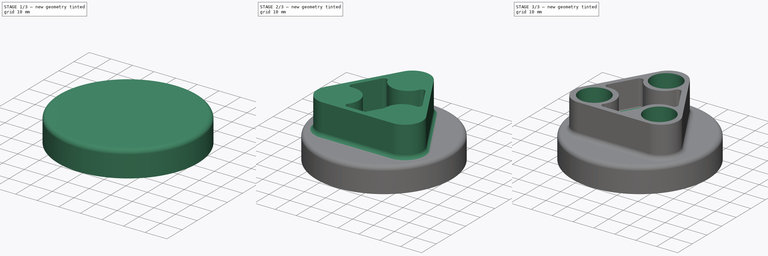
[diagram: build sequence overview — one tinted view per stage of 3, left to right]
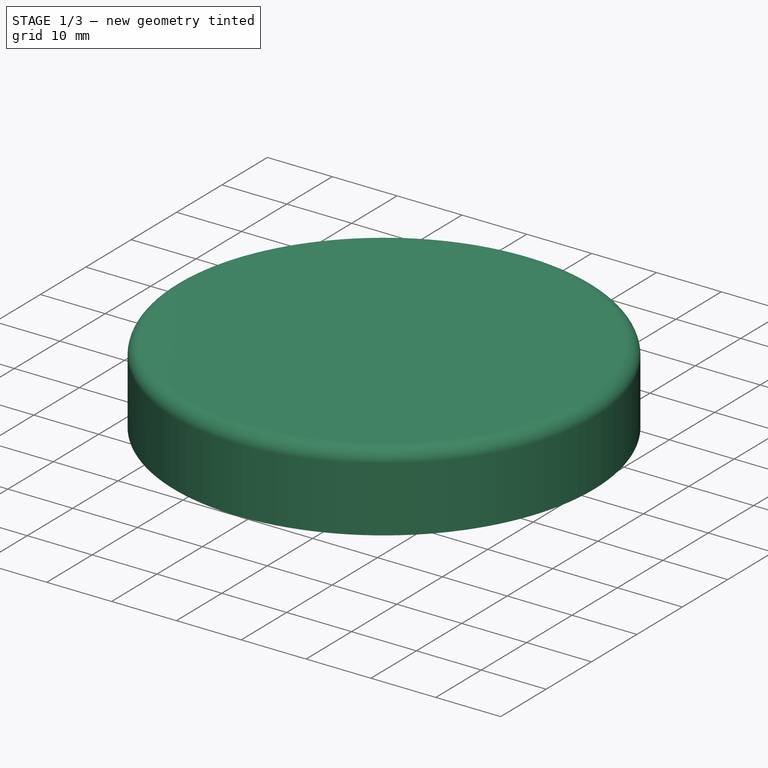
[diagram: stage 1 of 3 — iso view after this stage's code; geometry added in this stage tinted green]
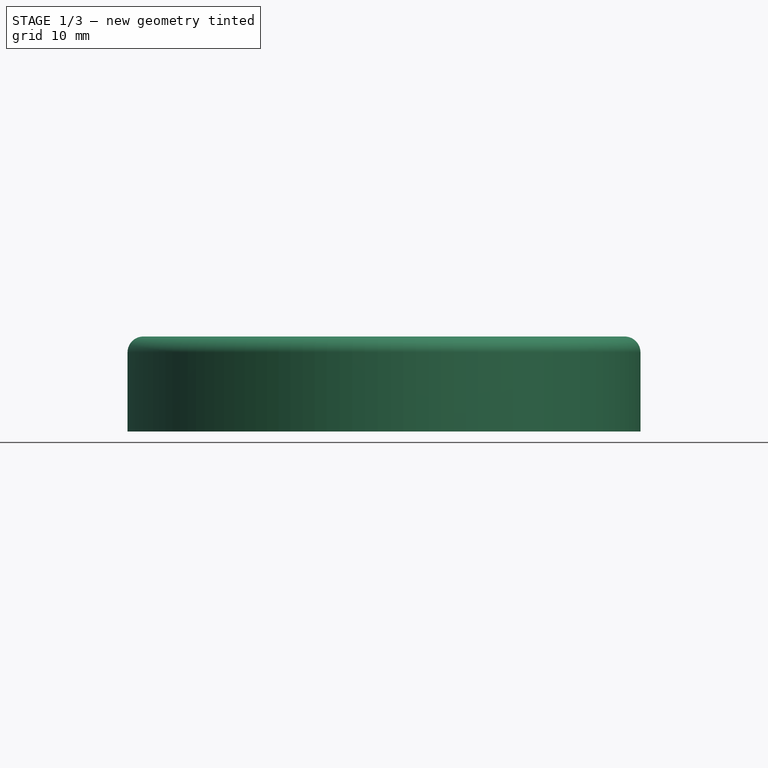
[diagram: stage 1 of 3 — front view after this stage's code; geometry added in this stage tinted green]
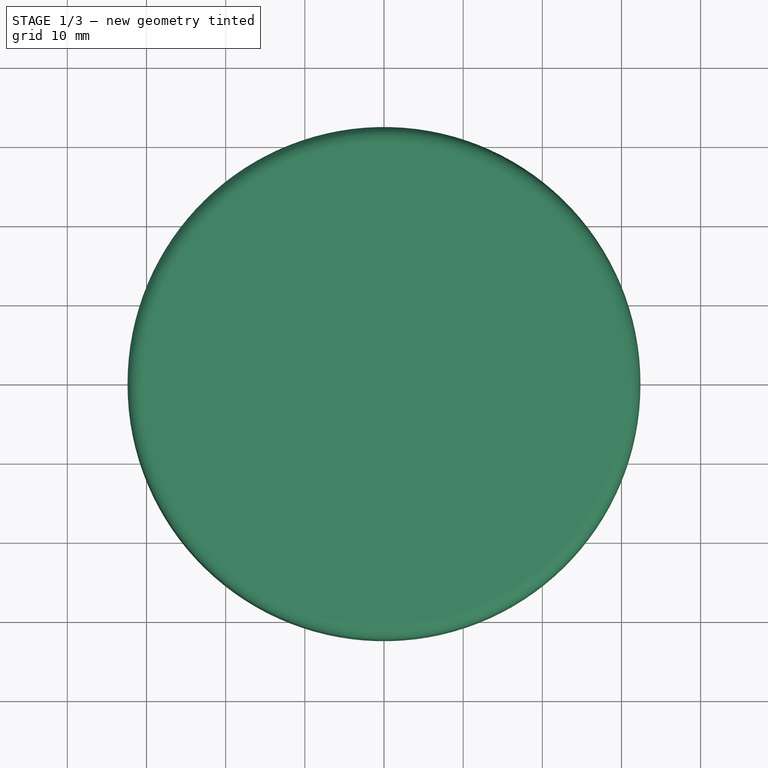
[diagram: stage 1 of 3 — top view after this stage's code; geometry added in this stage tinted green]
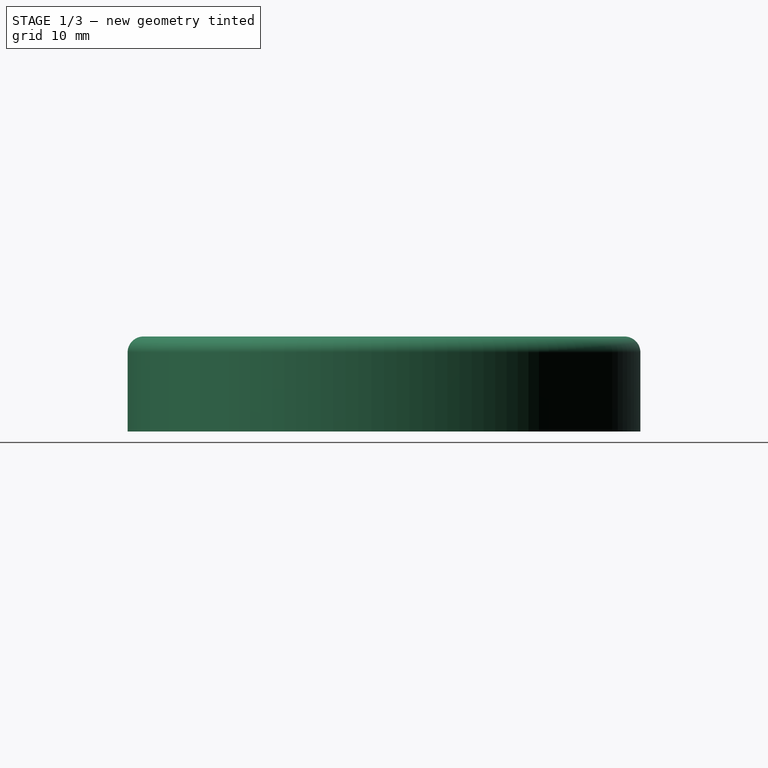
[diagram: stage 1 of 3 — right view after this stage's code; geometry added in this stage tinted green]
FCSTD DOCUMENT  (FreeCAD 0.21R33771 (Git))
Label: ex74
License: All rights reserved
LicenseURL: https://en.wikipedia.org/wiki/All_rights_reserved
objects: Sketcher::SketchObject×4, PartDesign::Fillet×3, PartDesign::Pad×2, PartDesign::Pocket×2, PartDesign::Body×1
note: 19 computed .brp shape members not serialized (recipe doc carries the construction recipe); baked Part::Feature solids carry a one-line shape summary decoded from their .brp

FEATURE [Sketcher::SketchObject] Sketch
  FullyConstrained = false
  MapMode = 5
  Support = -> [XY_Plane]
  sketch-geometry (1):
    g0: Circle CenterX=0 CenterY=0 CenterZ=0 NormalX=0 NormalY=0 NormalZ=1 AngleXU=0 Radius=32.3939
  constraints (1):
    c: Coincident(g0,g-1)
FEATURE [PartDesign::Pad] Pad
  Direction = (0,0,1)
  Length = 12
  Length2 = 10
  Profile = -> Sketch
  ReferenceAxis = -> Sketch [N_Axis]
  Type = 0
FEATURE [PartDesign::Fillet] Fillet
  Base = -> Pad [Edge3]
  BaseFeature = -> Pad
  Radius = 2
  SupportTransform = false
  UseAllEdges = false
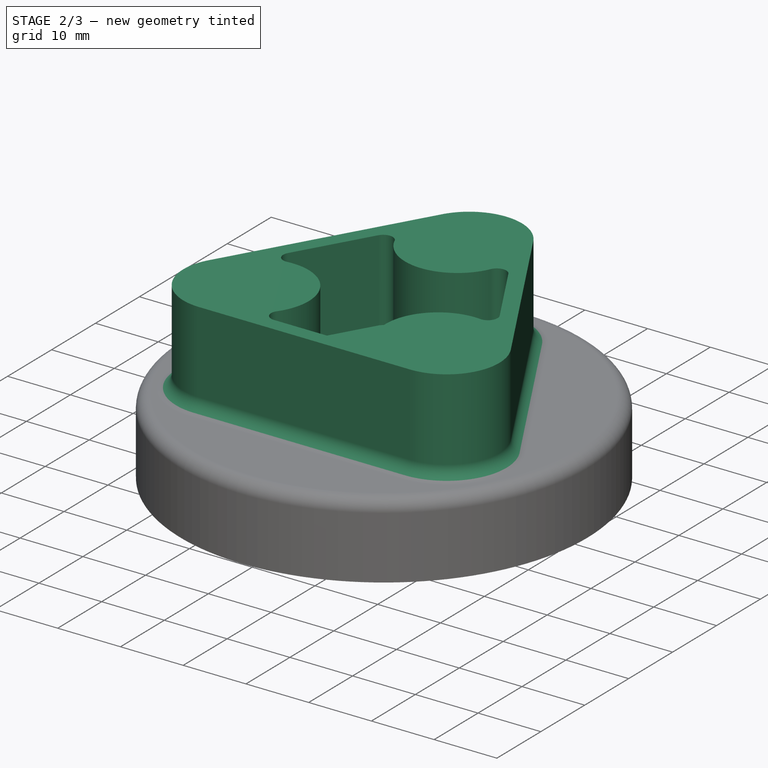
[diagram: stage 2 of 3 — iso view after this stage's code; geometry added in this stage tinted green]
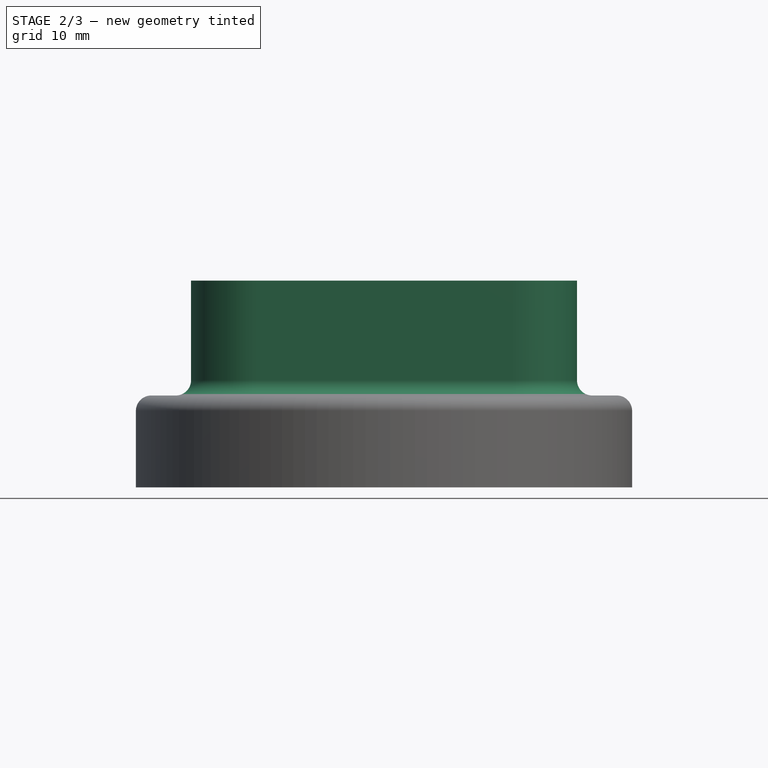
[diagram: stage 2 of 3 — front view after this stage's code; geometry added in this stage tinted green]
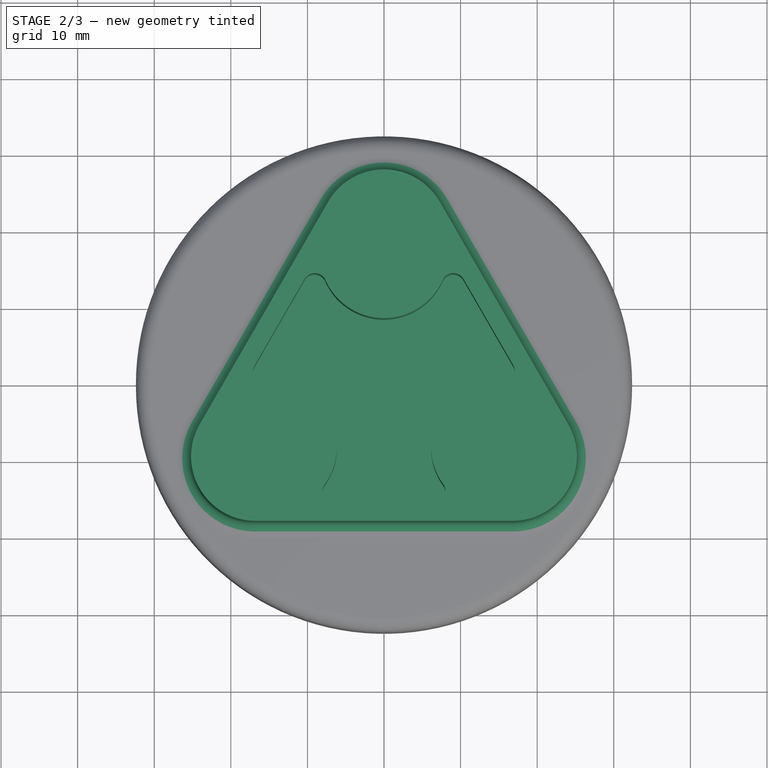
[diagram: stage 2 of 3 — top view after this stage's code; geometry added in this stage tinted green]
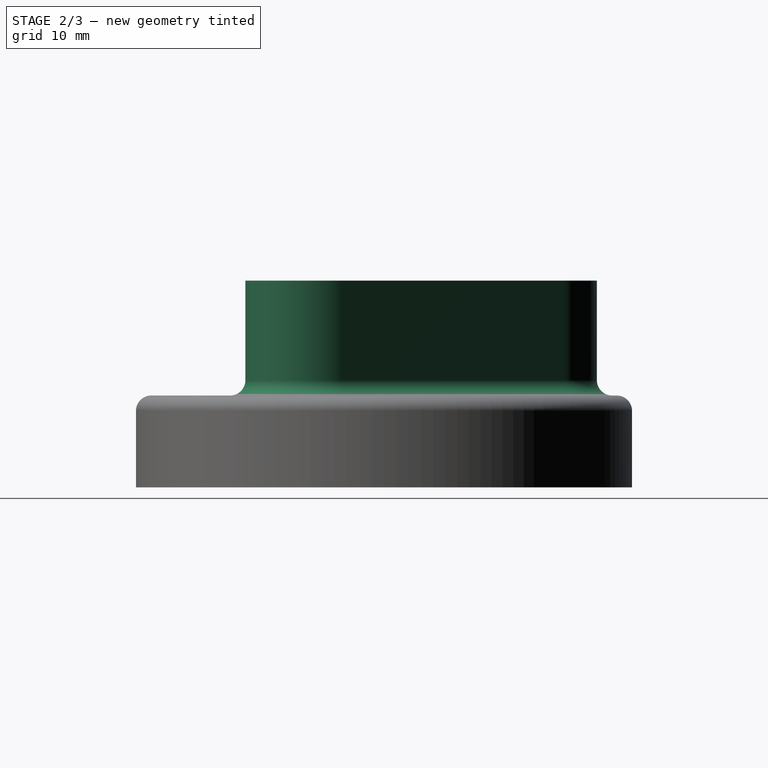
[diagram: stage 2 of 3 — right view after this stage's code; geometry added in this stage tinted green]
FEATURE [Sketcher::SketchObject] Sketch001
  FullyConstrained = false
  MapMode = 5
  Placement = pos=(0,0,12) rot=(0,0,1;0rad)
  Support = -> [Fillet]
  sketch-geometry (11):
    g0: LineSegment StartX=16.8029 StartY=-9.70117 StartZ=0 EndX=0 EndY=19.4023 EndZ=0
    g1: LineSegment StartX=0 StartY=19.4023 StartZ=0 EndX=-16.8029 EndY=-9.70117 EndZ=0
    g2: LineSegment StartX=-16.8029 StartY=-9.70117 StartZ=0 EndX=16.8029 EndY=-9.70117 EndZ=0
    g3: Circle CenterX=0 CenterY=0 CenterZ=0 NormalX=0 NormalY=0 NormalZ=1 AngleXU=0 Radius=19.4023
    g4: ArcOfCircle CenterX=0 CenterY=19.4023 CenterZ=0 NormalX=0 NormalY=0 NormalZ=1 AngleXU=0 Radius=8.39314 StartAngle=0.523599 EndAngle=2.61799
    g5: ArcOfCircle CenterX=-16.8029 CenterY=-9.70117 CenterZ=0 NormalX=0 NormalY=0 NormalZ=1 AngleXU=0 Radius=8.39314 StartAngle=2.61799 EndAngle=4.71239
    g6: ArcOfCircle CenterX=16.8029 CenterY=-9.70117 CenterZ=0 NormalX=0 NormalY=0 NormalZ=1 AngleXU=0 Radius=8.39314 StartAngle=4.71239 EndAngle=6.80678
    g7: LineSegment StartX=24.0716 StartY=-5.5046 StartZ=0 EndX=7.26867 EndY=23.5989 EndZ=0
    g8: LineSegment StartX=-7.26867 StartY=23.5989 StartZ=0 EndX=-24.0716 EndY=-5.5046 EndZ=0
    g9: LineSegment StartX=-16.8029 StartY=-18.0943 StartZ=0 EndX=16.8029 EndY=-18.0943 EndZ=0
    g10: Circle CenterX=0 CenterY=0 CenterZ=0 NormalX=0 NormalY=0 NormalZ=1 AngleXU=0 Radius=36.1886
  constraints (22):
    c: Coincident(g0,g1)
    c: Coincident(g1,g2)
    c: Coincident(g2,g0)
    c: Equal(g0,g1)
    c: Equal(g0,g2)
    c: PointOnObject(g0,g3)
    c: PointOnObject(g1,g3)
    c: PointOnObject(g2,g3)
    c: Coincident(g3,g-1)
    c: PointOnObject(g0,g-2)
    c: Coincident(g4,g0)
    c: Coincident(g5,g1)
    c: Coincident(g6,g0)
    c: Equal(g6,g4)
    c: Equal(g4,g5)
    c: Coincident(g10,g3)
    c: Coincident(g5,g9)
    c: Tangent(g5,g8) = -1.5708
    c: Coincident(g6,g9)
    c: Coincident(g6,g7)
    c: Tangent(g4,g7) = -1.5708
    c: Tangent(g4,g8) = -1.5708
FEATURE [PartDesign::Pad] Pad001
  BaseFeature = -> Fillet
  Direction = (0,0,1)
  Length = 15
  Length2 = 10
  Profile = -> Sketch001
  ReferenceAxis = -> Sketch001 [N_Axis]
  Type = 0
FEATURE [Sketcher::SketchObject] Sketch003
  AttachmentOffset = pos=(0,0,15) rot=(0,0,1;0rad)
  FullyConstrained = false
  MapMode = 5
  Placement = pos=(0,0,27) rot=(0,0,1;0rad)
  Support = -> [Fillet]
  sketch-geometry (8):
    g0: LineSegment StartX=15.5357 StartY=-8.96953 StartZ=0 EndX=0 EndY=17.9391 EndZ=0
    g1: LineSegment StartX=0 StartY=17.9391 StartZ=0 EndX=-15.5357 EndY=-8.96953 EndZ=0
    g2: LineSegment StartX=-15.5357 StartY=-8.96953 StartZ=0 EndX=15.5357 EndY=-8.96953 EndZ=0
    g3: Circle CenterX=0 CenterY=0 CenterZ=0 NormalX=0 NormalY=0 NormalZ=1 AngleXU=0 Radius=17.9391
    g4: Circle CenterX=0 CenterY=0 CenterZ=0 NormalX=0 NormalY=0 NormalZ=1 AngleXU=0 Radius=36.1886
    g5: Circle CenterX=-15.5357 CenterY=-8.96953 CenterZ=0 NormalX=0 NormalY=0 NormalZ=1 AngleXU=0 Radius=7.19804
    g6: Circle CenterX=0 CenterY=17.9391 CenterZ=0 NormalX=0 NormalY=0 NormalZ=1 AngleXU=0 Radius=7.19804
    g7: Circle CenterX=15.5357 CenterY=-8.96953 CenterZ=0 NormalX=0 NormalY=0 NormalZ=1 AngleXU=0 Radius=7.19804
  constraints (16):
    c: Coincident(g0,g1)
    c: Coincident(g1,g2)
    c: Coincident(g2,g0)
    c: Equal(g0,g1)
    c: Equal(g0,g2)
    c: PointOnObject(g0,g3)
    c: PointOnObject(g1,g3)
    c: PointOnObject(g2,g3)
    c: Coincident(g3,g-1)
    c: PointOnObject(g0,g-2)
    c: Coincident(g4,g3)
    c: Coincident(g5,g1)
    c: Coincident(g6,g0)
    c: Coincident(g7,g0)
    c: Equal(g7,g6)
    c: Equal(g6,g5)
FEATURE [Sketcher::SketchObject] Sketch004
  AttachmentOffset = pos=(0,0,15) rot=(0,0,1;0rad)
  FullyConstrained = false
  MapMode = 5
  Placement = pos=(0,0,27) rot=(0,0,1;0rad)
  Support = -> [Fillet]
  sketch-geometry (23):
    g0: LineSegment StartX=14.4946 StartY=-8.36847 StartZ=0 EndX=-1.8e-15 EndY=16.7369 EndZ=0
    g1: LineSegment StartX=0 StartY=16.7369 StartZ=0 EndX=-14.4946 EndY=-8.36847 EndZ=0
    g2: LineSegment StartX=-14.4946 StartY=-8.36847 StartZ=0 EndX=14.4946 EndY=-8.36847 EndZ=0
    g3: Circle CenterX=0 CenterY=0 CenterZ=0 NormalX=0 NormalY=0 NormalZ=1 AngleXU=0 Radius=16.7369
    g4: LineSegment StartX=16.8793 StartY=2.22488 StartZ=0 EndX=10.3713 EndY=13.4971 EndZ=0
    g5: LineSegment StartX=-10.3713 StartY=13.4971 StartZ=0 EndX=-16.8793 EndY=2.22488 EndZ=0
    g6: LineSegment StartX=-6.50803 StartY=-15.7388 StartZ=0 EndX=6.50803 EndY=-15.7388 EndZ=0
    g7: Circle CenterX=0 CenterY=0 CenterZ=0 NormalX=0 NormalY=0 NormalZ=1 AngleXU=0 Radius=36.1886
    g8: ArcOfCircle CenterX=-6e-16 CenterY=16.7491 CenterZ=0 NormalX=0 NormalY=0 NormalZ=1 AngleXU=0 Radius=8.37848 StartAngle=3.55895 EndAngle=5.86583
    g9: ArcOfCircle CenterX=-14.51 CenterY=-8.38293 CenterZ=0 NormalX=0 NormalY=0 NormalZ=1 AngleXU=0 Radius=8.37848 StartAngle=5.65335 EndAngle=7.96022
    g10: ArcOfCircle CenterX=14.51 CenterY=-8.38293 CenterZ=0 NormalX=0 NormalY=0 NormalZ=1 AngleXU=0 Radius=8.37848 StartAngle=1.46456 EndAngle=3.77143
    g11: LineSegment StartX=-21.0239 StartY=-3.77 StartZ=0 EndX=-14.51 EndY=-15.0524 EndZ=0
    g12: LineSegment StartX=20.4687 StartY=-3.75943 StartZ=0 EndX=13.9548 EndY=-15.0418 EndZ=0
    g13: LineSegment StartX=-6.49178 StartY=20.1968 StartZ=0 EndX=6.53597 EndY=20.1968 EndZ=0
    g14: ArcOfCircle CenterX=-9.05197 CenterY=12.7354 CenterZ=0 NormalX=0 NormalY=0 NormalZ=1 AngleXU=0 Radius=1.52345 StartAngle=0.417359 EndAngle=2.61799
    g15: ArcOfCircle CenterX=9.05197 CenterY=12.7354 CenterZ=0 NormalX=0 NormalY=0 NormalZ=1 AngleXU=0 Radius=1.52345 StartAngle=0.523599 EndAngle=2.72423
    g16: ArcOfCircle CenterX=-15.56 CenterY=1.46316 CenterZ=0 NormalX=0 NormalY=0 NormalZ=1 AngleXU=0 Radius=1.52345 StartAngle=2.61799 EndAngle=4.81863
    g17: ArcOfCircle CenterX=-6.50803 CenterY=-14.2153 CenterZ=0 NormalX=0 NormalY=0 NormalZ=1 AngleXU=0 Radius=1.52345 StartAngle=2.51175 EndAngle=4.71239
    g18: LineSegment StartX=-15.56 StartY=1.46316 StartZ=0 EndX=-6.50803 EndY=-14.2153 EndZ=0
    g19: ArcOfCircle CenterX=15.56 CenterY=1.46316 CenterZ=0 NormalX=0 NormalY=0 NormalZ=1 AngleXU=0 Radius=1.52345 StartAngle=4.60615 EndAngle=6.80678
    g20: ArcOfCircle CenterX=6.50803 CenterY=-14.2153 CenterZ=0 NormalX=0 NormalY=0 NormalZ=1 AngleXU=0 Radius=1.52345 StartAngle=4.71239 EndAngle=6.91302
    g21: LineSegment StartX=-9.05197 StartY=12.7354 StartZ=0 EndX=9.05197 EndY=12.7354 EndZ=0
    g22: LineSegment StartX=15.56 StartY=1.46316 StartZ=0 EndX=6.50803 EndY=-14.2153 EndZ=0
  constraints (54):
    c: Coincident(g0,g1)
    c: Coincident(g1,g2)
    c: Coincident(g2,g0)
    c: Equal(g0,g1)
    c: Equal(g0,g2)
    c: PointOnObject(g0,g3)
    c: PointOnObject(g1,g3)
    c: PointOnObject(g2,g3)
    c: Coincident(g3,g-1)
    c: PointOnObject(g0,g-2)
    c: Coincident(g7,g3)
    c: Equal(g10,g9)
    c: Parallel(g11,g0)
    c: Parallel(g1,g12)
    c: Horizontal(g13)
    c: Parallel(g13,g6)
    c: Equal(g9,g8)
    c: DistanceX(g11,g-1) = 14.51
    c: DistanceX(g3,g10) = 14.51
    c: Equal(g11,g12)
    c: Equal(g12,g13)
    c: DistanceY(g11,g3) = 3.77
    c: Tangent(g5,g14) = -1.5708
    c: Tangent(g8,g14) = 1.5708
    c: Tangent(g8,g15) = 1.5708
    c: Tangent(g4,g15) = -1.5708
    c: Equal(g14,g15)
    c: Horizontal(g14,g15)
    c: Tangent(g5,g16) = -1.5708
    c: Tangent(g9,g16) = 1.5708
    c: Tangent(g9,g17) = 1.5708
    c: Tangent(g6,g17) = -1.5708
    c: Equal(g16,g17)
    c: Coincident(g18,g16)
    c: Coincident(g18,g17)
    c: Parallel(g18,g11)
    c: Tangent(g4,g19) = -1.5708
    c: Tangent(g10,g19) = 1.5708
    c: Tangent(g10,g20) = 1.5708
    c: Tangent(g6,g20) = -1.5708
    c: Equal(g20,g19)
    c: Coincident(g21,g14)
    c: Coincident(g21,g15)
    c: Coincident(g22,g19)
    c: Coincident(g22,g20)
    c: Parallel(g22,g12)
    c: Equal(g22,g21)
    c: Equal(g21,g18)
    c: DistanceX(g16,g3) = 15.56
    c: DistanceX(g3,g19) = 15.56
    c: Horizontal(g16,g19)
    c: Equal(g16,g14)
    c: Parallel(g5,g1)
    c: Parallel(g4,g0)
FEATURE [PartDesign::Fillet] Fillet001
  Base = -> Pad001 [Face4]
  BaseFeature = -> Pad001
  Radius = 2
  SupportTransform = false
  UseAllEdges = false
FEATURE [PartDesign::Pocket] Pocket
  BaseFeature = -> Fillet001
  Direction = (0,0,-1)
  Length = 13
  Length2 = 5
  Profile = -> Sketch004
  ReferenceAxis = -> Sketch004 [N_Axis]
  Type = 0
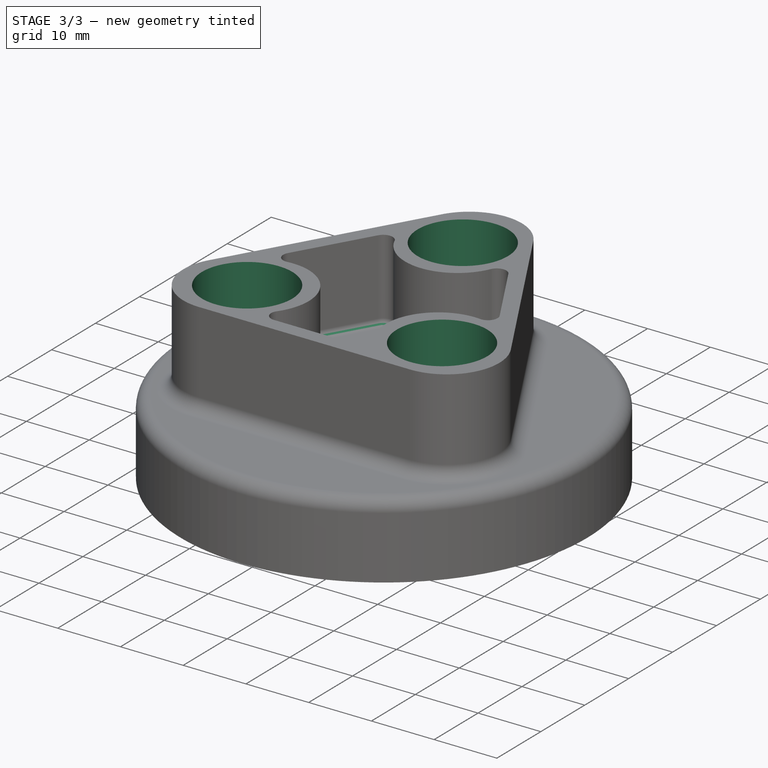
[diagram: stage 3 of 3 — iso view after this stage's code; geometry added in this stage tinted green]
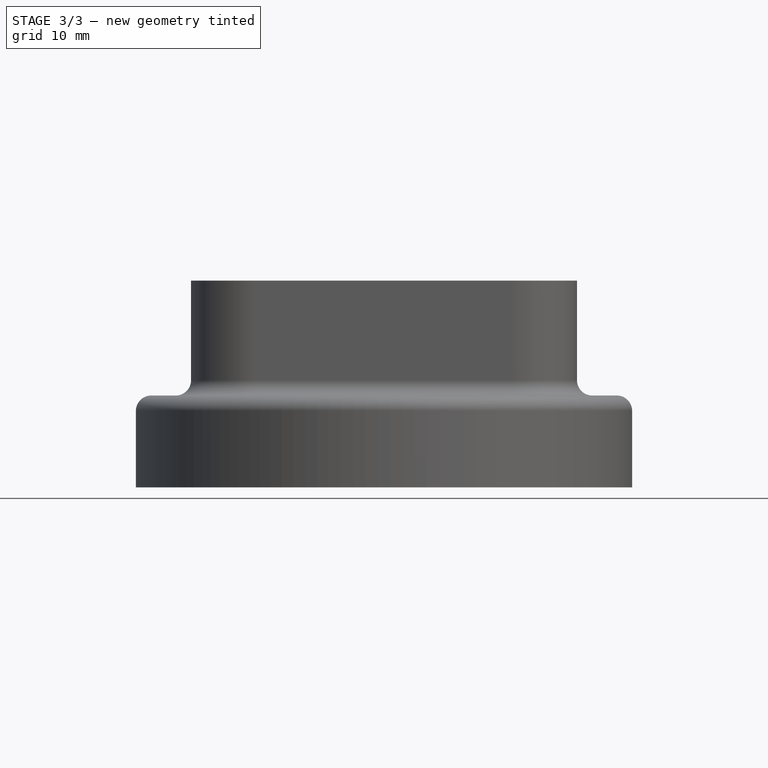
[diagram: stage 3 of 3 — front view after this stage's code; geometry added in this stage tinted green]
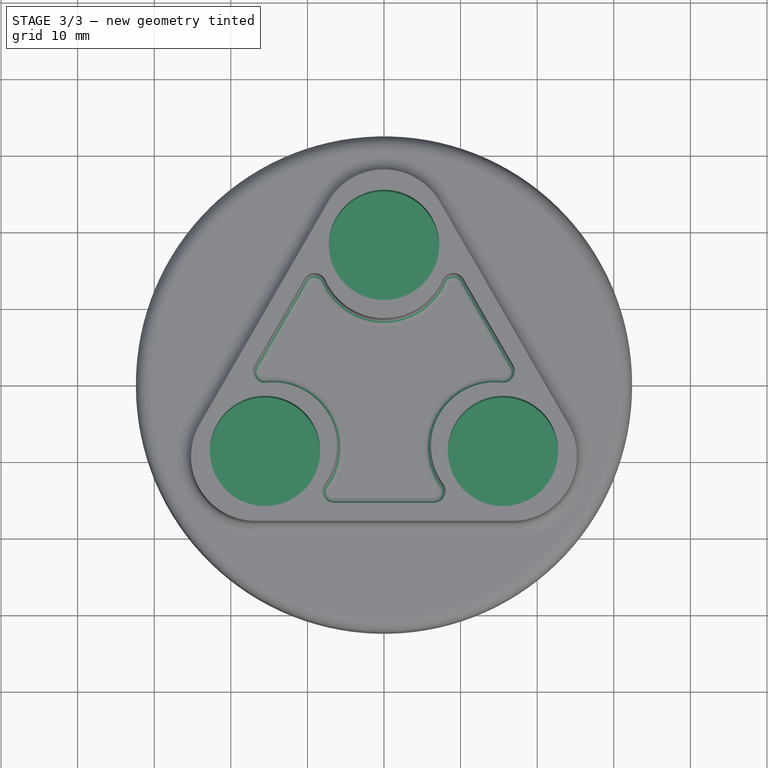
[diagram: stage 3 of 3 — top view after this stage's code; geometry added in this stage tinted green]
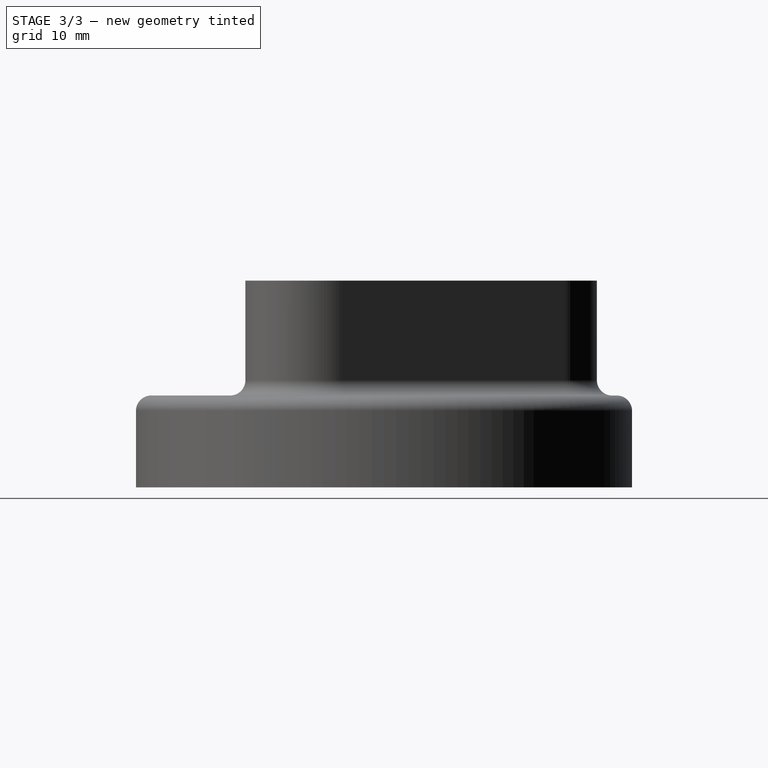
[diagram: stage 3 of 3 — right view after this stage's code; geometry added in this stage tinted green]
FEATURE [PartDesign::Pocket] Pocket001
  BaseFeature = -> Pocket
  Direction = (0,0,-1)
  Length = 13
  Length2 = 5
  Profile = -> Sketch003
  ReferenceAxis = -> Sketch003 [N_Axis]
  Type = 0
FEATURE [PartDesign::Fillet] Fillet002
  Base = -> Pocket001 [Face34]
  BaseFeature = -> Pocket001
  Radius = 1
  SupportTransform = false
  UseAllEdges = false
FEATURE [PartDesign::Body] Body
  Group = -> [Sketch,Pad,Fillet,Sketch001,Pad001,Sketch003,Sketch004,Fillet001,Pocket,Pocket001,Fillet002]
  Origin = -> Origin
  Tip = -> Fillet002
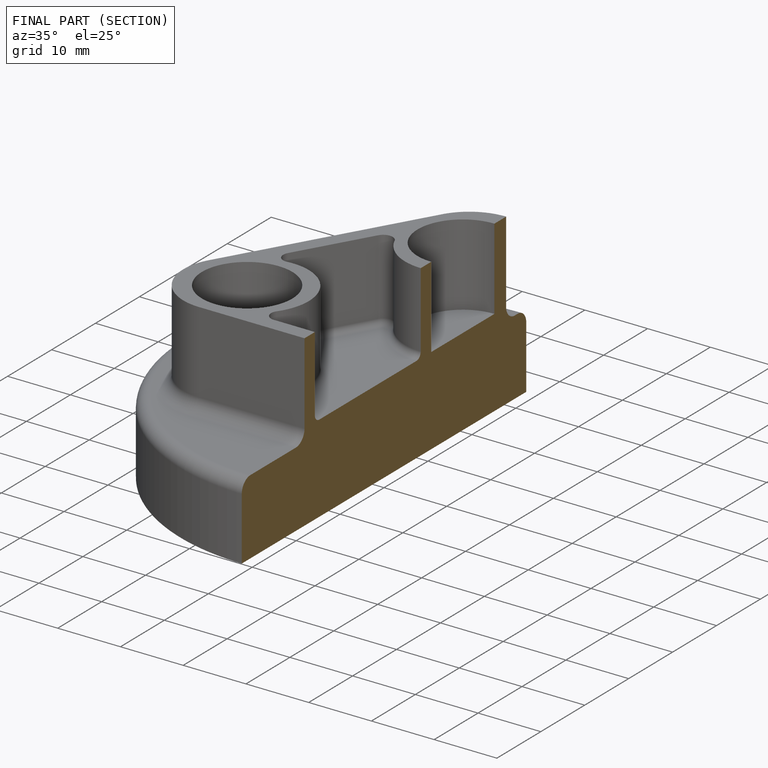
[diagram: finished part — half-section view (interior)]
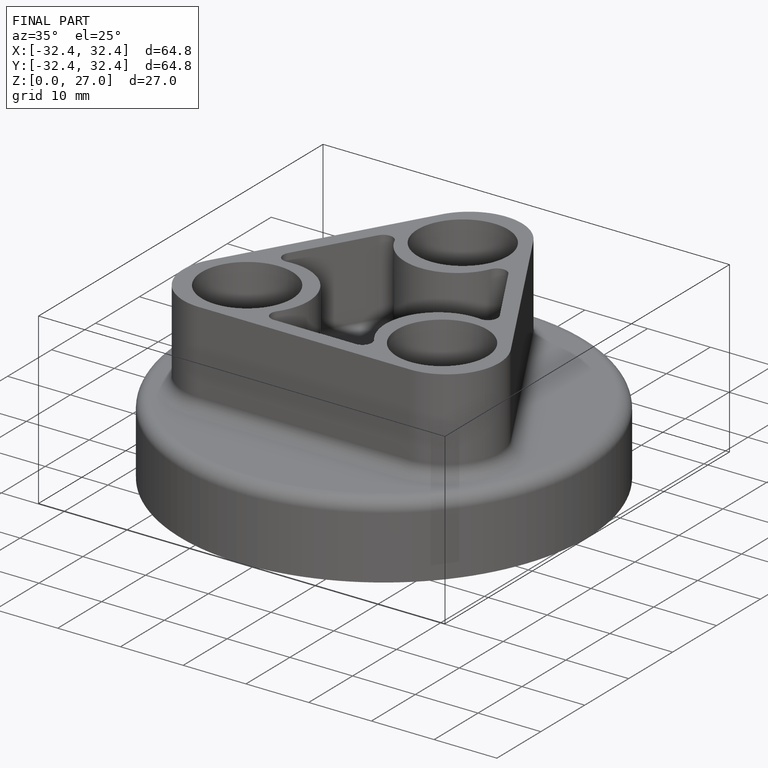
[diagram: finished part — iso view with bounding-box wireframe]
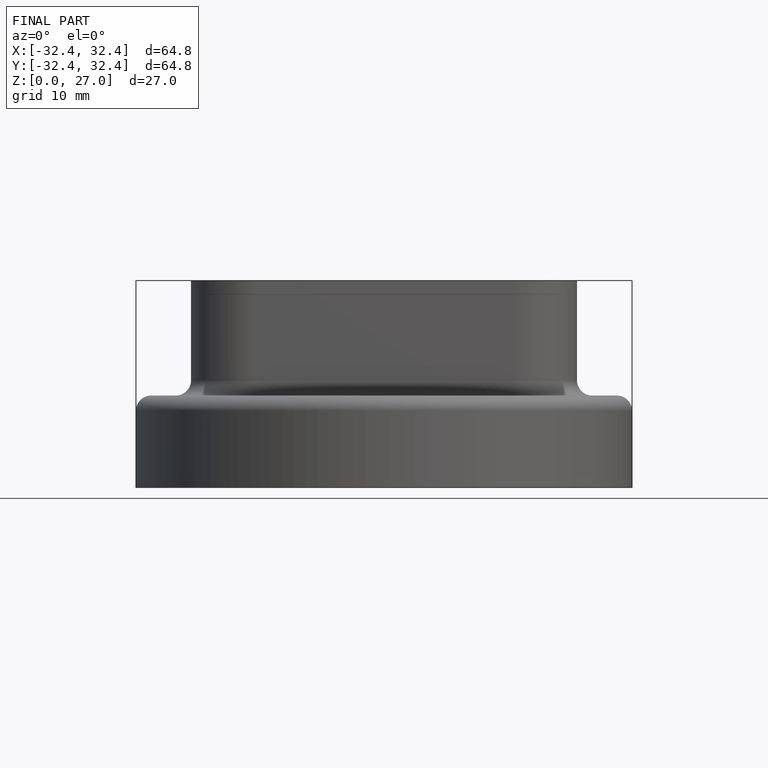
[diagram: finished part — front view with bounding-box wireframe]
